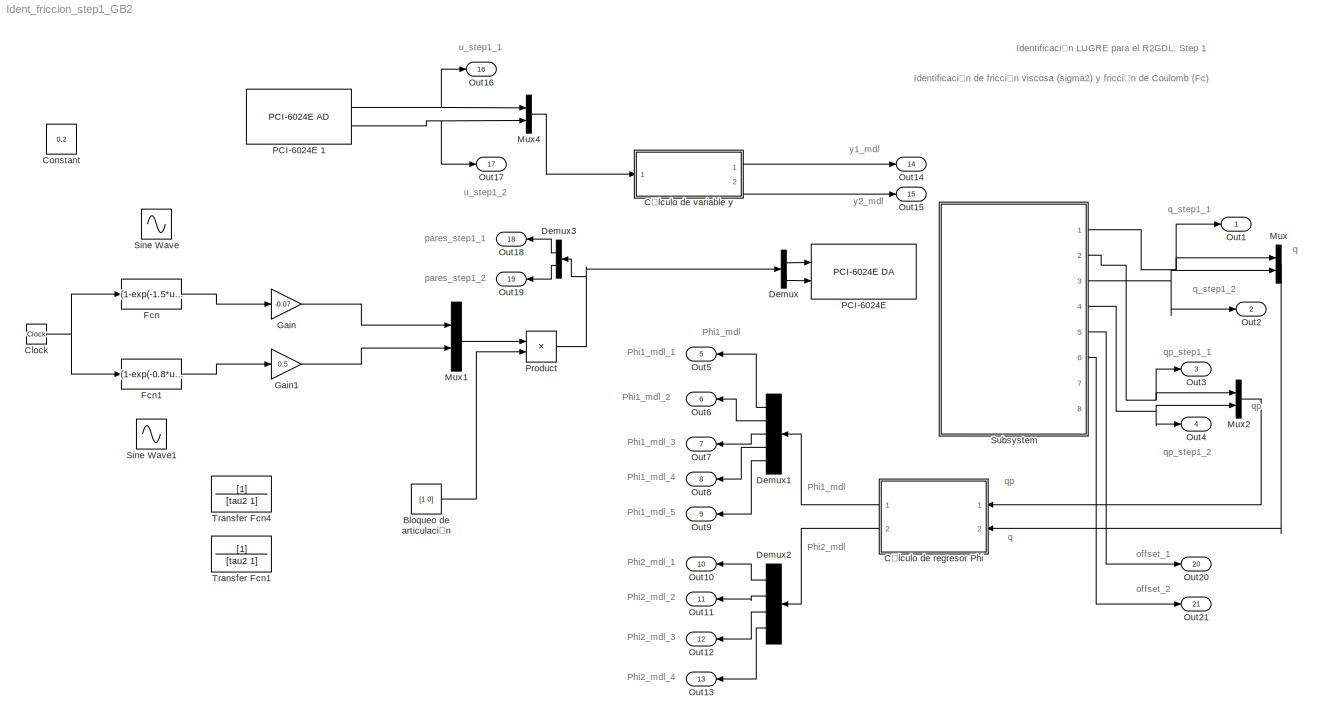
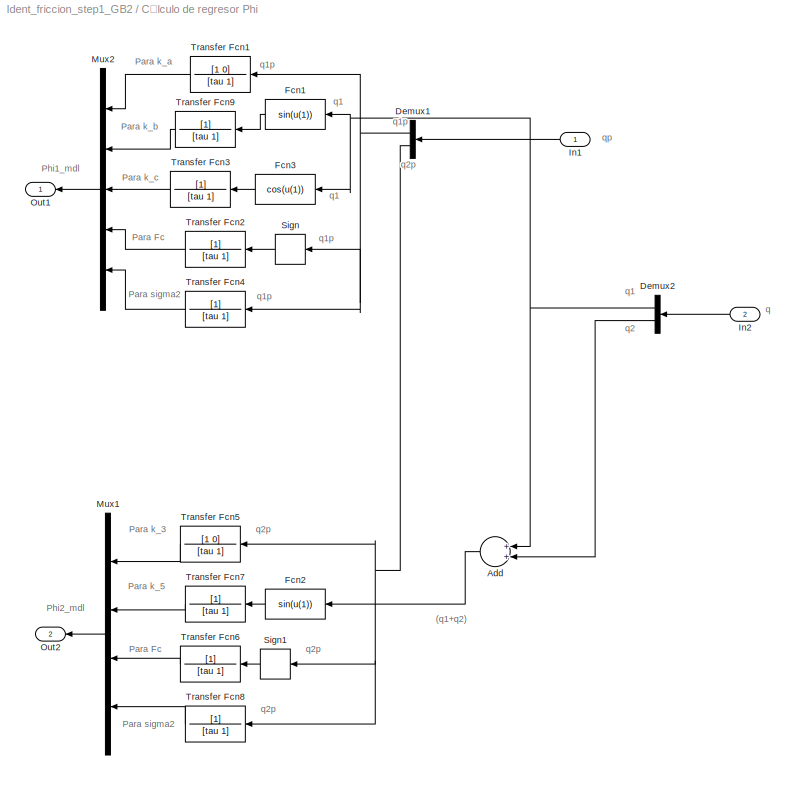
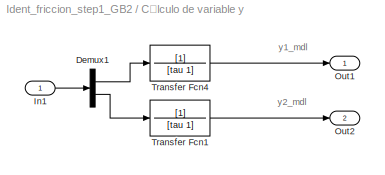
MODEL Ident_friccion_step1_GB2
KIND model
CONFIG PreLoadFcn = inicializacion_step1
CONFIG StopFcn = saveDATA_Ident_friccion_STEP1_GB\n
BLOCK [Constant] Bloqueo de articulación
  Value = [1 0]
BLOCK [Clock] Clock
  Decimation = 10
BLOCK [Constant] Constant
  IOType = siggen
  Value = 0.2
BLOCK [SubSystem] Cálculo de regresor Phi
  FunctionWithSeparateData = off
  MaskHideContents = off
  MaskIconFrame = on
  MaskIconOpaque = on
  MaskIconRotate = none
  MaskIconUnits = autoscale
  MinAlgLoopOccurrences = off
  Ports = [2, 2]
  RTWSystemCode = Auto
BLOCK [Sum] Cálculo de regresor Phi/Add
  CollapseMode = All dimensions
  InputSameDT = off
  OutDataTypeMode = Inherit via internal rule
  OutScaling = 2^-10
  Ports = [2, 1]
  SaturateOnIntegerOverflow = off
BLOCK [Demux] Cálculo de regresor Phi/Demux1
  DisplayOption = bar
  Outputs = 2
  Ports = [1, 2]
BLOCK [Demux] Cálculo de regresor Phi/Demux2
  DisplayOption = bar
  Outputs = 2
  Ports = [1, 2]
BLOCK [Fcn] Cálculo de regresor Phi/Fcn1
  Expr = sin(u(1))
BLOCK [Fcn] Cálculo de regresor Phi/Fcn2
  Expr = sin(u(1))
BLOCK [Fcn] Cálculo de regresor Phi/Fcn3
  Expr = cos(u(1))
BLOCK [Inport] Cálculo de regresor Phi/In1
  IconDisplay = Port number
BLOCK [Inport] Cálculo de regresor Phi/In2
  IconDisplay = Port number
  Port = 2
BLOCK [Mux] Cálculo de regresor Phi/Mux1
  DisplayOption = bar
  Ports = [4, 1]
BLOCK [Mux] Cálculo de regresor Phi/Mux2
  DisplayOption = bar
  Inputs = 5
  Ports = [5, 1]
BLOCK [Outport] Cálculo de regresor Phi/Out1
  BusOutputAsStruct = off
  IconDisplay = Port number
BLOCK [Outport] Cálculo de regresor Phi/Out2
  BusOutputAsStruct = off
  IconDisplay = Port number
  Port = 2
BLOCK [Signum] Cálculo de regresor Phi/Sign
BLOCK [Signum] Cálculo de regresor Phi/Sign1
BLOCK [TransferFcn] Cálculo de regresor Phi/Transfer Fcn1
  Denominator = [tau 1]
  Numerator = [1 0]
BLOCK [TransferFcn] Cálculo de regresor Phi/Transfer Fcn2
  Denominator = [tau 1]
BLOCK [TransferFcn] Cálculo de regresor Phi/Transfer Fcn3
  Denominator = [tau 1]
BLOCK [TransferFcn] Cálculo de regresor Phi/Transfer Fcn4
  Denominator = [tau 1]
BLOCK [TransferFcn] Cálculo de regresor Phi/Transfer Fcn5
  Denominator = [tau 1]
  Numerator = [1 0]
BLOCK [TransferFcn] Cálculo de regresor Phi/Transfer Fcn6
  Denominator = [tau 1]
BLOCK [TransferFcn] Cálculo de regresor Phi/Transfer Fcn7
  Denominator = [tau 1]
BLOCK [TransferFcn] Cálculo de regresor Phi/Transfer Fcn8
  Denominator = [tau 1]
BLOCK [TransferFcn] Cálculo de regresor Phi/Transfer Fcn9
  Denominator = [tau 1]
BLOCK [SubSystem] Cálculo de variable y
  FunctionWithSeparateData = off
  MaskHideContents = off
  MinAlgLoopOccurrences = off
  Ports = [1, 2]
  RTWSystemCode = Auto
BLOCK [Demux] Cálculo de variable y/Demux1
  DisplayOption = bar
  Outputs = 2
  Ports = [1, 2]
BLOCK [Inport] Cálculo de variable y/In1
  IconDisplay = Port number
BLOCK [Outport] Cálculo de variable y/Out1
  BusOutputAsStruct = off
  IconDisplay = Port number
BLOCK [Outport] Cálculo de variable y/Out2
  BusOutputAsStruct = off
  IconDisplay = Port number
  Port = 2
BLOCK [TransferFcn] Cálculo de variable y/Transfer Fcn1
  Denominator = [tau 1]
BLOCK [TransferFcn] Cálculo de variable y/Transfer Fcn4
  Denominator = [tau 1]
BLOCK [Demux] Demux
  DisplayOption = bar
  Outputs = 2
  Ports = [1, 2]
BLOCK [Demux] Demux1
  DisplayOption = bar
  Outputs = 5
  Ports = [1, 5]
BLOCK [Demux] Demux2
  DisplayOption = bar
  Ports = [1, 4]
BLOCK [Demux] Demux3
  DisplayOption = bar
  Outputs = 2
  Ports = [1, 2]
BLOCK [Fcn] Fcn
  Expr = (1-exp(-1.5*u(1)))*5+8*sin(8*u(1)+0.08)+5*sin(4*u(1)+0.34)
BLOCK [Fcn] Fcn1
  Expr = (1-exp(-0.8*u(1)))*1.2+8*sin(26*u(1)+0.08)+2*sin(12*u(1)+0.34)
BLOCK [Gain] Gain
  Gain = -0.07
  OutDataTypeMode = Inherit via internal rule
  ParameterDataTypeMode = Inherit via internal rule
  SaturateOnIntegerOverflow = off
BLOCK [Gain] Gain1
  Gain = 0.5
  OutDataTypeMode = Inherit via internal rule
  ParameterDataTypeMode = Inherit via internal rule
  SaturateOnIntegerOverflow = off
BLOCK [Mux] Mux
  DisplayOption = bar
  Inputs = 2
  Ports = [2, 1]
BLOCK [Mux] Mux1
  DisplayOption = bar
  Inputs = 2
  Ports = [2, 1]
BLOCK [Mux] Mux2
  DisplayOption = bar
  Inputs = 2
  Ports = [2, 1]
BLOCK [Mux] Mux4
  DisplayOption = bar
  Inputs = 2
  Ports = [2, 1]
BLOCK [Outport] Out1
  BusOutputAsStruct = off
  IconDisplay = Port number
BLOCK [Outport] Out10
  BusOutputAsStruct = off
  IconDisplay = Port number
  Port = 10
BLOCK [Outport] Out11
  BusOutputAsStruct = off
  IconDisplay = Port number
  Port = 11
BLOCK [Outport] Out12
  BusOutputAsStruct = off
  IconDisplay = Port number
  Port = 12
BLOCK [Outport] Out13
  BusOutputAsStruct = off
  IconDisplay = Port number
  Port = 13
BLOCK [Outport] Out14
  BusOutputAsStruct = off
  IconDisplay = Port number
  Port = 14
BLOCK [Outport] Out15
  BusOutputAsStruct = off
  IconDisplay = Port number
  Port = 15
BLOCK [Outport] Out16
  BusOutputAsStruct = off
  IconDisplay = Port number
  Port = 16
BLOCK [Outport] Out17
  BusOutputAsStruct = off
  IconDisplay = Port number
  Port = 17
BLOCK [Outport] Out18
  BusOutputAsStruct = off
  IconDisplay = Port number
  Port = 18
BLOCK [Outport] Out19
  BusOutputAsStruct = off
  IconDisplay = Port number
  Port = 19
BLOCK [Outport] Out2
  BusOutputAsStruct = off
  IconDisplay = Port number
  Port = 2
BLOCK [Outport] Out20
  BusOutputAsStruct = off
  IconDisplay = Port number
  Port = 20
BLOCK [Outport] Out21
  BusOutputAsStruct = off
  IconDisplay = Port number
  Port = 21
BLOCK [Outport] Out3
  BusOutputAsStruct = off
  IconDisplay = Port number
  Port = 3
BLOCK [Outport] Out4
  BusOutputAsStruct = off
  IconDisplay = Port number
  Port = 4
BLOCK [Outport] Out5
  BusOutputAsStruct = off
  IconDisplay = Port number
  Port = 5
BLOCK [Outport] Out6
  BusOutputAsStruct = off
  IconDisplay = Port number
  Port = 6
BLOCK [Outport] Out7
  BusOutputAsStruct = off
  IconDisplay = Port number
  Port = 7
BLOCK [Outport] Out8
  BusOutputAsStruct = off
  IconDisplay = Port number
  Port = 8
BLOCK [Outport] Out9
  BusOutputAsStruct = off
  IconDisplay = Port number
  Port = 9
BLOCK [Reference] PCI-6024E   REF=xpcnilib/D//A/PCI-6024E DA
  Ports = [2]
  SourceBlock = xpcnilib/D//A/PCI-6024E DA
  SourceType = danipci6024e
  channel = [1,2]
  initValue = [0]
  reset = [1]
  sampletime = 0.001
  slot = -1
BLOCK [Reference] PCI-6024E 1  REF=xpcnilib/A//D/PCI-6024E AD
  Ports = [0, 2]
  SourceBlock = xpcnilib/A//D/PCI-6024E AD
  SourceType = adnipci6024e
  channel = [3,4]
  coupling = [0,0]
  range = [-10,-10]
  sampletime = 0.001
  slot = -1
BLOCK [Product] Product
  CollapseMode = All dimensions
  InputSameDT = off
  OutDataTypeMode = Inherit via internal rule
  Ports = [2, 1]
  SaturateOnIntegerOverflow = off
BLOCK [Sin] Sine Wave
  Amplitude = K1
  Frequency = w1
  Ports = [0, 1]
  SampleTime = 0
  SineType = Time based
BLOCK [Sin] Sine Wave1
  Amplitude = K2
  Frequency = w2
  Ports = [0, 1]
  SampleTime = 0
  SineType = Time based
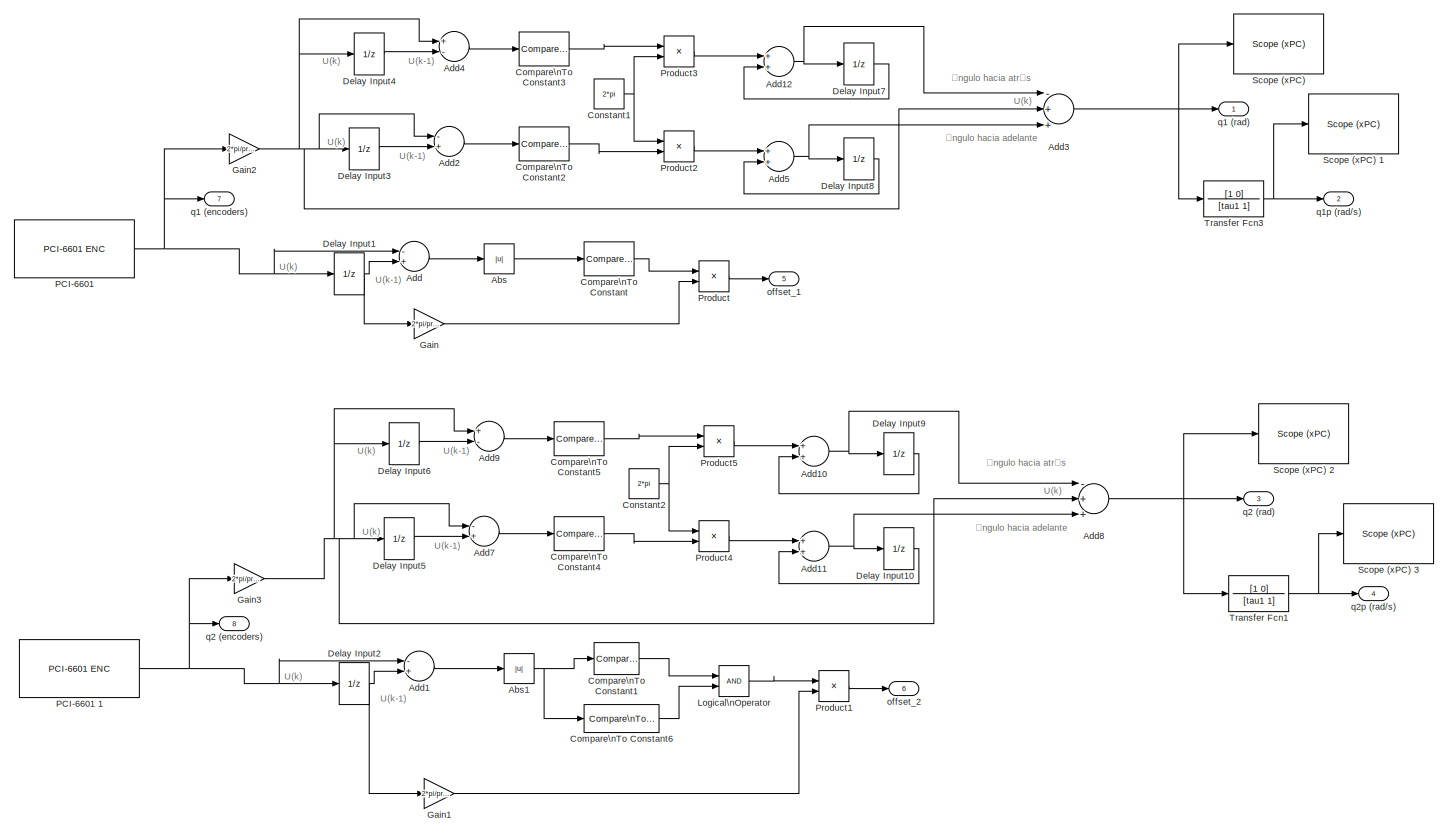
[diagram: Subsystem - part 1/1, most of the canvas]
BLOCK [SubSystem] Subsystem
  FunctionWithSeparateData = off
  MaskHideContents = off
  MinAlgLoopOccurrences = off
  Ports = [0, 8]
  RTWSystemCode = Auto
BLOCK [Abs] Subsystem/Abs
  SaturateOnIntegerOverflow = off
BLOCK [Abs] Subsystem/Abs1
  SaturateOnIntegerOverflow = off
BLOCK [Sum] Subsystem/Add
  CollapseMode = All dimensions
  InputSameDT = off
  Inputs = -+
  OutDataTypeMode = Inherit via internal rule
  OutScaling = 2^-10
  Ports = [2, 1]
  SaturateOnIntegerOverflow = off
BLOCK [Sum] Subsystem/Add1
  CollapseMode = All dimensions
  InputSameDT = off
  Inputs = -+
  OutDataTypeMode = Inherit via internal rule
  OutScaling = 2^-10
  Ports = [2, 1]
  SaturateOnIntegerOverflow = off
BLOCK [Sum] Subsystem/Add10
  CollapseMode = All dimensions
  InputSameDT = off
  OutDataTypeMode = Inherit via internal rule
  OutScaling = 2^-10
  Ports = [2, 1]
  SaturateOnIntegerOverflow = off
BLOCK [Sum] Subsystem/Add11
  CollapseMode = All dimensions
  InputSameDT = off
  OutDataTypeMode = Inherit via internal rule
  OutScaling = 2^-10
  Ports = [2, 1]
  SaturateOnIntegerOverflow = off
BLOCK [Sum] Subsystem/Add12
  CollapseMode = All dimensions
  InputSameDT = off
  OutDataTypeMode = Inherit via internal rule
  OutScaling = 2^-10
  Ports = [2, 1]
  SaturateOnIntegerOverflow = off
BLOCK [Sum] Subsystem/Add2
  CollapseMode = All dimensions
  InputSameDT = off
  Inputs = -+
  OutDataTypeMode = Inherit via internal rule
  OutScaling = 2^-10
  Ports = [2, 1]
  SaturateOnIntegerOverflow = off
BLOCK [Sum] Subsystem/Add3
  CollapseMode = All dimensions
  InputSameDT = off
  Inputs = -++
  OutDataTypeMode = Inherit via internal rule
  OutScaling = 2^-10
  Ports = [3, 1]
  SaturateOnIntegerOverflow = off
BLOCK [Sum] Subsystem/Add4
  CollapseMode = All dimensions
  InputSameDT = off
  Inputs = +-
  OutDataTypeMode = Inherit via internal rule
  OutScaling = 2^-10
  Ports = [2, 1]
  SaturateOnIntegerOverflow = off
BLOCK [Sum] Subsystem/Add5
  CollapseMode = All dimensions
  InputSameDT = off
  OutDataTypeMode = Inherit via internal rule
  OutScaling = 2^-10
  Ports = [2, 1]
  SaturateOnIntegerOverflow = off
BLOCK [Sum] Subsystem/Add7
  CollapseMode = All dimensions
  InputSameDT = off
  Inputs = -+
  OutDataTypeMode = Inherit via internal rule
  OutScaling = 2^-10
  Ports = [2, 1]
  SaturateOnIntegerOverflow = off
BLOCK [Sum] Subsystem/Add8
  CollapseMode = All dimensions
  InputSameDT = off
  Inputs = -++
  OutDataTypeMode = Inherit via internal rule
  OutScaling = 2^-10
  Ports = [3, 1]
  SaturateOnIntegerOverflow = off
BLOCK [Sum] Subsystem/Add9
  CollapseMode = All dimensions
  InputSameDT = off
  Inputs = +-
  OutDataTypeMode = Inherit via internal rule
  OutScaling = 2^-10
  Ports = [2, 1]
  SaturateOnIntegerOverflow = off
BLOCK [Reference] Subsystem/Compare\nTo Constant  REF=simulink/Logic and Bit\nOperations/Compare\nTo Constant
  FunctionWithSeparateData = off
  LogicOutDataTypeMode = uint8
  Ports = [1, 1]
  RTWMemSecDataConstants = Inherit from model
  RTWMemSecDataInternal = Inherit from model
  RTWMemSecDataParameters = Inherit from model
  RTWMemSecFuncExecute = Inherit from model
  RTWMemSecFuncInitTerm = Inherit from model
  ShowPortLabels = FromPortIcon
  SourceBlock = simulink/Logic and Bit\nOperations/Compare\nTo Constant
  SourceType = Compare To Constant
  SystemSampleTime = -1
  ZeroCross = off
  const = zero_h
  relop = >
BLOCK [Reference] Subsystem/Compare\nTo Constant1  REF=simulink/Logic and Bit\nOperations/Compare\nTo Constant
  FunctionWithSeparateData = off
  LogicOutDataTypeMode = uint8
  Ports = [1, 1]
  RTWMemSecDataConstants = Inherit from model
  RTWMemSecDataInternal = Inherit from model
  RTWMemSecDataParameters = Inherit from model
  RTWMemSecFuncExecute = Inherit from model
  RTWMemSecFuncInitTerm = Inherit from model
  ShowPortLabels = FromPortIcon
  SourceBlock = simulink/Logic and Bit\nOperations/Compare\nTo Constant
  SourceType = Compare To Constant
  SystemSampleTime = -1
  ZeroCross = off
  const = zero_c
  relop = >
BLOCK [Reference] Subsystem/Compare\nTo Constant2  REF=simulink/Logic and Bit\nOperations/Compare\nTo Constant
  FunctionWithSeparateData = off
  LogicOutDataTypeMode = uint8
  Ports = [1, 1]
  RTWMemSecDataConstants = Inherit from model
  RTWMemSecDataInternal = Inherit from model
  RTWMemSecDataParameters = Inherit from model
  RTWMemSecFuncExecute = Inherit from model
  RTWMemSecFuncInitTerm = Inherit from model
  ShowPortLabels = FromPortIcon
  SourceBlock = simulink/Logic and Bit\nOperations/Compare\nTo Constant
  SourceType = Compare To Constant
  SystemSampleTime = -1
  ZeroCross = off
  const = pi
  relop = >
BLOCK [Reference] Subsystem/Compare\nTo Constant3  REF=simulink/Logic and Bit\nOperations/Compare\nTo Constant
  FunctionWithSeparateData = off
  LogicOutDataTypeMode = uint8
  Ports = [1, 1]
  RTWMemSecDataConstants = Inherit from model
  RTWMemSecDataInternal = Inherit from model
  RTWMemSecDataParameters = Inherit from model
  RTWMemSecFuncExecute = Inherit from model
  RTWMemSecFuncInitTerm = Inherit from model
  ShowPortLabels = FromPortIcon
  SourceBlock = simulink/Logic and Bit\nOperations/Compare\nTo Constant
  SourceType = Compare To Constant
  SystemSampleTime = -1
  ZeroCross = off
  const = pi
  relop = >
BLOCK [Reference] Subsystem/Compare\nTo Constant4  REF=simulink/Logic and Bit\nOperations/Compare\nTo Constant
  FunctionWithSeparateData = off
  LogicOutDataTypeMode = uint8
  Ports = [1, 1]
  RTWMemSecDataConstants = Inherit from model
  RTWMemSecDataInternal = Inherit from model
  RTWMemSecDataParameters = Inherit from model
  RTWMemSecFuncExecute = Inherit from model
  RTWMemSecFuncInitTerm = Inherit from model
  ShowPortLabels = FromPortIcon
  SourceBlock = simulink/Logic and Bit\nOperations/Compare\nTo Constant
  SourceType = Compare To Constant
  SystemSampleTime = -1
  ZeroCross = off
  const = pi
  relop = >
BLOCK [Reference] Subsystem/Compare\nTo Constant5  REF=simulink/Logic and Bit\nOperations/Compare\nTo Constant
  FunctionWithSeparateData = off
  LogicOutDataTypeMode = uint8
  Ports = [1, 1]
  RTWMemSecDataConstants = Inherit from model
  RTWMemSecDataInternal = Inherit from model
  RTWMemSecDataParameters = Inherit from model
  RTWMemSecFuncExecute = Inherit from model
  RTWMemSecFuncInitTerm = Inherit from model
  ShowPortLabels = FromPortIcon
  SourceBlock = simulink/Logic and Bit\nOperations/Compare\nTo Constant
  SourceType = Compare To Constant
  SystemSampleTime = -1
  ZeroCross = off
  const = pi
  relop = >
BLOCK [Reference] Subsystem/Compare\nTo Constant6  REF=simulink/Logic and Bit\nOperations/Compare\nTo Constant
  FunctionWithSeparateData = off
  LogicOutDataTypeMode = uint8
  Ports = [1, 1]
  RTWMemSecDataConstants = Inherit from model
  RTWMemSecDataInternal = Inherit from model
  RTWMemSecDataParameters = Inherit from model
  RTWMemSecFuncExecute = Inherit from model
  RTWMemSecFuncInitTerm = Inherit from model
  ShowPortLabels = FromPortIcon
  SourceBlock = simulink/Logic and Bit\nOperations/Compare\nTo Constant
  SourceType = Compare To Constant
  SystemSampleTime = -1
  ZeroCross = off
  const = precision
  relop = <
BLOCK [Constant] Subsystem/Constant1
  Value = 2*pi
BLOCK [Constant] Subsystem/Constant2
  Value = 2*pi
BLOCK [UnitDelay] Subsystem/Delay Input1
  Description = \nStore in Global RAM
  SampleTime = -1
BLOCK [UnitDelay] Subsystem/Delay Input10
  Description = \nStore in Global RAM
  SampleTime = -1
BLOCK [UnitDelay] Subsystem/Delay Input2
  Description = \nStore in Global RAM
  SampleTime = -1
BLOCK [UnitDelay] Subsystem/Delay Input3
  Description = \nStore in Global RAM
  SampleTime = -1
BLOCK [UnitDelay] Subsystem/Delay Input4
  Description = \nStore in Global RAM
  SampleTime = -1
BLOCK [UnitDelay] Subsystem/Delay Input5
  Description = \nStore in Global RAM
  SampleTime = -1
BLOCK [UnitDelay] Subsystem/Delay Input6
  Description = \nStore in Global RAM
  SampleTime = -1
BLOCK [UnitDelay] Subsystem/Delay Input7
  Description = \nStore in Global RAM
  SampleTime = -1
BLOCK [UnitDelay] Subsystem/Delay Input8
  Description = \nStore in Global RAM
  SampleTime = -1
BLOCK [UnitDelay] Subsystem/Delay Input9
  Description = \nStore in Global RAM
  SampleTime = -1
BLOCK [Gain] Subsystem/Gain
  Gain = 2*pi/precision
  OutDataTypeMode = Inherit via internal rule
  ParameterDataTypeMode = Inherit via internal rule
  SaturateOnIntegerOverflow = off
BLOCK [Gain] Subsystem/Gain1
  Gain = 2*pi/precision
  OutDataTypeMode = Inherit via internal rule
  ParameterDataTypeMode = Inherit via internal rule
  SaturateOnIntegerOverflow = off
BLOCK [Gain] Subsystem/Gain2
  Gain = 2*pi/precision
  OutDataTypeMode = Inherit via internal rule
  ParameterDataTypeMode = Inherit via internal rule
  SaturateOnIntegerOverflow = off
BLOCK [Gain] Subsystem/Gain3
  Gain = 2*pi/precision
  OutDataTypeMode = Inherit via internal rule
  ParameterDataTypeMode = Inherit via internal rule
  SaturateOnIntegerOverflow = off
BLOCK [Logic] Subsystem/Logical\nOperator
  AllPortsSameDT = off
  OutDataTypeMode = Specify via dialog
  Ports = [2, 1]
BLOCK [Reference] Subsystem/PCI-6601   REF=xpcnilib/Incremental\nEncoder/PCI-6601 ENC
  Ports = [0, 1]
  SourceBlock = xpcnilib/Incremental\nEncoder/PCI-6601 ENC
  SourceType = encnipci6601
  channel = 1
  countMode = Quadrature Mode X1
  filter = None
  indexPhase = A high B high
  initCount = 0
  reload = on
  sampleTime = 0.001
  slot = -1
BLOCK [Reference] Subsystem/PCI-6601 1  REF=xpcnilib/Incremental\nEncoder/PCI-6601 ENC
  Ports = [0, 1]
  SourceBlock = xpcnilib/Incremental\nEncoder/PCI-6601 ENC
  SourceType = encnipci6601
  channel = 2
  countMode = Quadrature Mode X1
  filter = None
  indexPhase = A high B high
  initCount = 0
  reload = on
  sampleTime = 0.001
  slot = -1
BLOCK [Product] Subsystem/Product
  CollapseMode = All dimensions
  InputSameDT = off
  OutDataTypeMode = Inherit via internal rule
  Ports = [2, 1]
  SaturateOnIntegerOverflow = off
BLOCK [Product] Subsystem/Product1
  CollapseMode = All dimensions
  InputSameDT = off
  OutDataTypeMode = Inherit via internal rule
  Ports = [2, 1]
  SaturateOnIntegerOverflow = off
BLOCK [Product] Subsystem/Product2
  CollapseMode = All dimensions
  InputSameDT = off
  OutDataTypeMode = Inherit via internal rule
  Ports = [2, 1]
  SaturateOnIntegerOverflow = off
BLOCK [Product] Subsystem/Product3
  CollapseMode = All dimensions
  InputSameDT = off
  OutDataTypeMode = Inherit via internal rule
  Ports = [2, 1]
  SaturateOnIntegerOverflow = off
BLOCK [Product] Subsystem/Product4
  CollapseMode = All dimensions
  InputSameDT = off
  OutDataTypeMode = Inherit via internal rule
  Ports = [2, 1]
  SaturateOnIntegerOverflow = off
BLOCK [Product] Subsystem/Product5
  CollapseMode = All dimensions
  InputSameDT = off
  OutDataTypeMode = Inherit via internal rule
  Ports = [2, 1]
  SaturateOnIntegerOverflow = off
BLOCK [Reference] Subsystem/Scope (xPC)   REF=xpclib/Misc./Scope (xPC) 
  FunctionWithSeparateData = off
  Ports = [1]
  RTWMemSecDataConstants = Inherit from model
  RTWMemSecDataInternal = Inherit from model
  RTWMemSecDataParameters = Inherit from model
  RTWMemSecFuncExecute = Inherit from model
  RTWMemSecFuncInitTerm = Inherit from model
  ShowPortLabels = FromPortIcon
  SourceBlock = xpclib/Misc./Scope (xPC)
  SourceType = xpcscopeblock
  SystemSampleTime = -1
  autorestart = off
  autostart = on
  filename = data.dat
  formatstr = '%15.6f'
  grid = on
  interleave = 1
  mode = Lazy
  noprepostsamples = 0
  nosamples = 250
  scopeno = 1
  scopetype = Target
  triggerlevel = 0.0
  triggermode = FreeRun
  triggersample = 0
  triggerscope = 1
  triggersignal = 1
  triggerslope = Either
  viewmode = Graphical redraw
  writesize = 512
  ylimits = [0,0]
BLOCK [Reference] Subsystem/Scope (xPC) 1  REF=xpclib/Misc./Scope (xPC) 
  FunctionWithSeparateData = off
  Ports = [1]
  RTWMemSecDataConstants = Inherit from model
  RTWMemSecDataInternal = Inherit from model
  RTWMemSecDataParameters = Inherit from model
  RTWMemSecFuncExecute = Inherit from model
  RTWMemSecFuncInitTerm = Inherit from model
  ShowPortLabels = FromPortIcon
  SourceBlock = xpclib/Misc./Scope (xPC)
  SourceType = xpcscopeblock
  SystemSampleTime = -1
  autorestart = off
  autostart = on
  filename = data.dat
  formatstr = '%15.6f'
  grid = on
  interleave = 1
  mode = Lazy
  noprepostsamples = 0
  nosamples = 250
  scopeno = 2
  scopetype = Target
  triggerlevel = 0.0
  triggermode = FreeRun
  triggersample = 0
  triggerscope = 1
  triggersignal = 1
  triggerslope = Either
  viewmode = Graphical redraw
  writesize = 512
  ylimits = [0,0]
BLOCK [Reference] Subsystem/Scope (xPC) 2  REF=xpclib/Misc./Scope (xPC) 
  FunctionWithSeparateData = off
  Ports = [1]
  RTWMemSecDataConstants = Inherit from model
  RTWMemSecDataInternal = Inherit from model
  RTWMemSecDataParameters = Inherit from model
  RTWMemSecFuncExecute = Inherit from model
  RTWMemSecFuncInitTerm = Inherit from model
  ShowPortLabels = FromPortIcon
  SourceBlock = xpclib/Misc./Scope (xPC)
  SourceType = xpcscopeblock
  SystemSampleTime = -1
  autorestart = off
  autostart = on
  filename = data.dat
  formatstr = '%15.6f'
  grid = on
  interleave = 1
  mode = Lazy
  noprepostsamples = 0
  nosamples = 250
  scopeno = 3
  scopetype = Target
  triggerlevel = 0.0
  triggermode = FreeRun
  triggersample = 0
  triggerscope = 1
  triggersignal = 1
  triggerslope = Either
  viewmode = Graphical redraw
  writesize = 512
  ylimits = [0,0]
BLOCK [Reference] Subsystem/Scope (xPC) 3  REF=xpclib/Misc./Scope (xPC) 
  FunctionWithSeparateData = off
  Ports = [1]
  RTWMemSecDataConstants = Inherit from model
  RTWMemSecDataInternal = Inherit from model
  RTWMemSecDataParameters = Inherit from model
  RTWMemSecFuncExecute = Inherit from model
  RTWMemSecFuncInitTerm = Inherit from model
  ShowPortLabels = FromPortIcon
  SourceBlock = xpclib/Misc./Scope (xPC)
  SourceType = xpcscopeblock
  SystemSampleTime = -1
  autorestart = off
  autostart = on
  filename = data.dat
  formatstr = '%15.6f'
  grid = on
  interleave = 1
  mode = Lazy
  noprepostsamples = 0
  nosamples = 250
  scopeno = 4
  scopetype = Target
  triggerlevel = 0.0
  triggermode = FreeRun
  triggersample = 0
  triggerscope = 1
  triggersignal = 1
  triggerslope = Either
  viewmode = Graphical redraw
  writesize = 512
  ylimits = [0,0]
BLOCK [TransferFcn] Subsystem/Transfer Fcn1
  Denominator = [tau1 1]
  Numerator = [1 0]
BLOCK [TransferFcn] Subsystem/Transfer Fcn3
  Denominator = [tau1 1]
  Numerator = [1 0]
BLOCK [Outport] Subsystem/offset_1
  BusOutputAsStruct = off
  IconDisplay = Port number
  Port = 5
BLOCK [Outport] Subsystem/offset_2
  BusOutputAsStruct = off
  IconDisplay = Port number
  Port = 6
BLOCK [Outport] Subsystem/q1 (encoders)
  BusOutputAsStruct = off
  IconDisplay = Port number
  Port = 7
BLOCK [Outport] Subsystem/q1 (rad)
  BusOutputAsStruct = off
  IconDisplay = Port number
BLOCK [Outport] Subsystem/q1p (rad//s)
  BusOutputAsStruct = off
  IconDisplay = Port number
  Port = 2
BLOCK [Outport] Subsystem/q2 (encoders)
  BusOutputAsStruct = off
  IconDisplay = Port number
  Port = 8
BLOCK [Outport] Subsystem/q2 (rad)
  BusOutputAsStruct = off
  IconDisplay = Port number
  Port = 3
BLOCK [Outport] Subsystem/q2p (rad//s)
  BusOutputAsStruct = off
  IconDisplay = Port number
  Port = 4
BLOCK [TransferFcn] Transfer Fcn1
  Denominator = [tau2 1]
BLOCK [TransferFcn] Transfer Fcn4
  Denominator = [tau2 1]
ANNOTATION (root): Identificación LUGRE para el R2GDL: Step 1
ANNOTATION (root): Identificación de fricción viscosa (sigma2) y fricción de Coulomb (Fc)
ANNOTATION (root): Phi1_mdl
ANNOTATION (root): Phi1_mdl_1
ANNOTATION (root): Phi1_mdl_2
ANNOTATION (root): Phi1_mdl_3
ANNOTATION (root): Phi1_mdl_4
ANNOTATION (root): Phi1_mdl_5
ANNOTATION (root): Phi2_mdl
ANNOTATION (root): Phi2_mdl_1
ANNOTATION (root): Phi2_mdl_2
ANNOTATION (root): Phi2_mdl_3
ANNOTATION (root): Phi2_mdl_4
ANNOTATION (root): offset_1
ANNOTATION (root): offset_2
ANNOTATION (root): pares_step1_1
ANNOTATION (root): pares_step1_2
ANNOTATION (root): q
ANNOTATION (root): q_step1_1
ANNOTATION (root): q_step1_2
ANNOTATION (root): qp
ANNOTATION (root): qp_step1_1
ANNOTATION (root): qp_step1_2
ANNOTATION (root): u_step1_1
ANNOTATION (root): u_step1_2
ANNOTATION (root): y1_mdl
ANNOTATION (root): y2_mdl
ANNOTATION Cálculo de regresor Phi: (q1+q2)
ANNOTATION Cálculo de regresor Phi: Para Fc
ANNOTATION Cálculo de regresor Phi: Para k_3
ANNOTATION Cálculo de regresor Phi: Para k_5
ANNOTATION Cálculo de regresor Phi: Para k_a
ANNOTATION Cálculo de regresor Phi: Para k_b
ANNOTATION Cálculo de regresor Phi: Para k_c
ANNOTATION Cálculo de regresor Phi: Para sigma2
ANNOTATION Cálculo de regresor Phi: Phi1_mdl
ANNOTATION Cálculo de regresor Phi: Phi2_mdl
ANNOTATION Cálculo de regresor Phi: q
ANNOTATION Cálculo de regresor Phi: q1
ANNOTATION Cálculo de regresor Phi: q1p
ANNOTATION Cálculo de regresor Phi: q1p\n
ANNOTATION Cálculo de regresor Phi: q2
ANNOTATION Cálculo de regresor Phi: q2p
ANNOTATION Cálculo de regresor Phi: qp
ANNOTATION Cálculo de variable y: y1_mdl
ANNOTATION Cálculo de variable y: y2_mdl
ANNOTATION Subsystem: U(k)
ANNOTATION Subsystem: U(k-1)
ANNOTATION Subsystem: Ángulo hacia adelante
ANNOTATION Subsystem: Ángulo hacia atrás
LINE Bloqueo de articulación:1 -> Product:2
NET Clock:1 -> Fcn1:1, Fcn:1
LINE Cálculo de regresor Phi/Add:1 -> Cálculo de regresor Phi/Fcn2:1
NET Cálculo de regresor Phi/Demux1:1 -> Cálculo de regresor Phi/Sign:1, Cálculo de regresor Phi/Transfer Fcn1:1, Cálculo de regresor Phi/Transfer Fcn4:1
NET Cálculo de regresor Phi/Demux1:2 -> Cálculo de regresor Phi/Sign1:1, Cálculo de regresor Phi/Transfer Fcn5:1, Cálculo de regresor Phi/Transfer Fcn8:1
NET Cálculo de regresor Phi/Demux2:1 -> Cálculo de regresor Phi/Add:1, Cálculo de regresor Phi/Fcn1:1, Cálculo de regresor Phi/Fcn3:1
LINE Cálculo de regresor Phi/Demux2:2 -> Cálculo de regresor Phi/Add:2
LINE Cálculo de regresor Phi/Fcn1:1 -> Cálculo de regresor Phi/Transfer Fcn9:1
LINE Cálculo de regresor Phi/Fcn2:1 -> Cálculo de regresor Phi/Transfer Fcn7:1
LINE Cálculo de regresor Phi/Fcn3:1 -> Cálculo de regresor Phi/Transfer Fcn3:1
LINE Cálculo de regresor Phi/In1:1 -> Cálculo de regresor Phi/Demux1:1
LINE Cálculo de regresor Phi/In2:1 -> Cálculo de regresor Phi/Demux2:1
LINE Cálculo de regresor Phi/Mux1:1 -> Cálculo de regresor Phi/Out2:1
LINE Cálculo de regresor Phi/Mux2:1 -> Cálculo de regresor Phi/Out1:1
LINE Cálculo de regresor Phi/Sign1:1 -> Cálculo de regresor Phi/Transfer Fcn6:1
LINE Cálculo de regresor Phi/Sign:1 -> Cálculo de regresor Phi/Transfer Fcn2:1
LINE Cálculo de regresor Phi/Transfer Fcn1:1 -> Cálculo de regresor Phi/Mux2:1
LINE Cálculo de regresor Phi/Transfer Fcn2:1 -> Cálculo de regresor Phi/Mux2:4
LINE Cálculo de regresor Phi/Transfer Fcn3:1 -> Cálculo de regresor Phi/Mux2:3
LINE Cálculo de regresor Phi/Transfer Fcn4:1 -> Cálculo de regresor Phi/Mux2:5
LINE Cálculo de regresor Phi/Transfer Fcn5:1 -> Cálculo de regresor Phi/Mux1:1
LINE Cálculo de regresor Phi/Transfer Fcn6:1 -> Cálculo de regresor Phi/Mux1:3
LINE Cálculo de regresor Phi/Transfer Fcn7:1 -> Cálculo de regresor Phi/Mux1:2
LINE Cálculo de regresor Phi/Transfer Fcn8:1 -> Cálculo de regresor Phi/Mux1:4
LINE Cálculo de regresor Phi/Transfer Fcn9:1 -> Cálculo de regresor Phi/Mux2:2
LINE Cálculo de regresor Phi:1 -> Demux1:1
LINE Cálculo de regresor Phi:2 -> Demux2:1
LINE Cálculo de variable y/Demux1:1 -> Cálculo de variable y/Transfer Fcn4:1
LINE Cálculo de variable y/Demux1:2 -> Cálculo de variable y/Transfer Fcn1:1
LINE Cálculo de variable y/In1:1 -> Cálculo de variable y/Demux1:1
LINE Cálculo de variable y/Transfer Fcn1:1 -> Cálculo de variable y/Out2:1
LINE Cálculo de variable y/Transfer Fcn4:1 -> Cálculo de variable y/Out1:1
LINE Cálculo de variable y:1 -> Out14:1
LINE Cálculo de variable y:2 -> Out15:1
LINE Demux1:1 -> Out5:1
LINE Demux1:2 -> Out6:1
LINE Demux1:3 -> Out7:1
LINE Demux1:4 -> Out8:1
LINE Demux1:5 -> Out9:1
LINE Demux2:1 -> Out10:1
LINE Demux2:2 -> Out11:1
LINE Demux2:3 -> Out12:1
LINE Demux2:4 -> Out13:1
LINE Demux3:1 -> Out18:1
LINE Demux3:2 -> Out19:1
LINE Demux:1 -> PCI-6024E :1
LINE Demux:2 -> PCI-6024E :2
LINE Fcn1:1 -> Gain1:1
LINE Fcn:1 -> Gain:1
LINE Gain1:1 -> Mux1:2
LINE Gain:1 -> Mux1:1
LINE Mux1:1 -> Product:1
LINE Mux2:1 -> Cálculo de regresor Phi:1
LINE Mux4:1 -> Cálculo de variable y:1
LINE Mux:1 -> Cálculo de regresor Phi:2
NET PCI-6024E 1:1 -> Mux4:1, Out16:1
NET PCI-6024E 1:2 -> Mux4:2, Out17:1
NET Product:1 -> Demux3:1, Demux:1
NET Subsystem/Abs1:1 -> Subsystem/Compare\nTo Constant1:1, Subsystem/Compare\nTo Constant6:1
LINE Subsystem/Abs:1 -> Subsystem/Compare\nTo Constant:1
NET Subsystem/Add10:1 -> Subsystem/Add8:1, Subsystem/Delay Input9:1
NET Subsystem/Add11:1 -> Subsystem/Add8:3, Subsystem/Delay Input10:1
NET Subsystem/Add12:1 -> Subsystem/Add3:1, Subsystem/Delay Input7:1
LINE Subsystem/Add1:1 -> Subsystem/Abs1:1
LINE Subsystem/Add2:1 -> Subsystem/Compare\nTo Constant2:1
NET Subsystem/Add3:1 -> Subsystem/Scope (xPC) :1, Subsystem/Transfer Fcn3:1, Subsystem/q1 (rad):1
LINE Subsystem/Add4:1 -> Subsystem/Compare\nTo Constant3:1
NET Subsystem/Add5:1 -> Subsystem/Add3:3, Subsystem/Delay Input8:1
LINE Subsystem/Add7:1 -> Subsystem/Compare\nTo Constant4:1
NET Subsystem/Add8:1 -> Subsystem/Scope (xPC) 2:1, Subsystem/Transfer Fcn1:1, Subsystem/q2 (rad):1
LINE Subsystem/Add9:1 -> Subsystem/Compare\nTo Constant5:1
LINE Subsystem/Add:1 -> Subsystem/Abs:1
LINE Subsystem/Compare\nTo Constant1:1 -> Subsystem/Logical\nOperator:1
LINE Subsystem/Compare\nTo Constant2:1 -> Subsystem/Product2:2
LINE Subsystem/Compare\nTo Constant3:1 -> Subsystem/Product3:1
LINE Subsystem/Compare\nTo Constant4:1 -> Subsystem/Product4:2
LINE Subsystem/Compare\nTo Constant5:1 -> Subsystem/Product5:1
LINE Subsystem/Compare\nTo Constant6:1 -> Subsystem/Logical\nOperator:2
LINE Subsystem/Compare\nTo Constant:1 -> Subsystem/Product:1
NET Subsystem/Constant1:1 -> Subsystem/Product2:1, Subsystem/Product3:2
NET Subsystem/Constant2:1 -> Subsystem/Product4:1, Subsystem/Product5:2
LINE Subsystem/Delay Input10:1 -> Subsystem/Add11:2
NET Subsystem/Delay Input1:1 -> Subsystem/Add:2, Subsystem/Gain:1
NET Subsystem/Delay Input2:1 -> Subsystem/Add1:2, Subsystem/Gain1:1
LINE Subsystem/Delay Input3:1 -> Subsystem/Add2:2
LINE Subsystem/Delay Input4:1 -> Subsystem/Add4:2
LINE Subsystem/Delay Input5:1 -> Subsystem/Add7:2
LINE Subsystem/Delay Input6:1 -> Subsystem/Add9:2
LINE Subsystem/Delay Input7:1 -> Subsystem/Add12:2
LINE Subsystem/Delay Input8:1 -> Subsystem/Add5:2
LINE Subsystem/Delay Input9:1 -> Subsystem/Add10:2
LINE Subsystem/Gain1:1 -> Subsystem/Product1:2
NET Subsystem/Gain2:1 -> Subsystem/Add2:1, Subsystem/Add3:2, Subsystem/Add4:1, Subsystem/Delay Input3:1, Subsystem/Delay Input4:1
NET Subsystem/Gain3:1 -> Subsystem/Add7:1, Subsystem/Add8:2, Subsystem/Add9:1, Subsystem/Delay Input5:1, Subsystem/Delay Input6:1
LINE Subsystem/Gain:1 -> Subsystem/Product:2
LINE Subsystem/Logical\nOperator:1 -> Subsystem/Product1:1
NET Subsystem/PCI-6601 1:1 -> Subsystem/Add1:1, Subsystem/Delay Input2:1, Subsystem/Gain3:1, Subsystem/q2 (encoders):1
NET Subsystem/PCI-6601 :1 -> Subsystem/Add:1, Subsystem/Delay Input1:1, Subsystem/Gain2:1, Subsystem/q1 (encoders):1
LINE Subsystem/Product1:1 -> Subsystem/offset_2:1
LINE Subsystem/Product2:1 -> Subsystem/Add5:1
LINE Subsystem/Product3:1 -> Subsystem/Add12:1
LINE Subsystem/Product4:1 -> Subsystem/Add11:1
LINE Subsystem/Product5:1 -> Subsystem/Add10:1
LINE Subsystem/Product:1 -> Subsystem/offset_1:1
NET Subsystem/Transfer Fcn1:1 -> Subsystem/Scope (xPC) 3:1, Subsystem/q2p (rad//s):1
NET Subsystem/Transfer Fcn3:1 -> Subsystem/Scope (xPC) 1:1, Subsystem/q1p (rad//s):1
NET Subsystem:1 -> Mux:1, Out1:1
NET Subsystem:2 -> Mux2:1, Out3:1
NET Subsystem:3 -> Mux:2, Out2:1
NET Subsystem:4 -> Mux2:2, Out4:1
LINE Subsystem:5 -> Out20:1
LINE Subsystem:6 -> Out21:1
note: NET lines group one-source signal fan-out (src -> all destinations, sorted); 1:1 wires keep LINE
